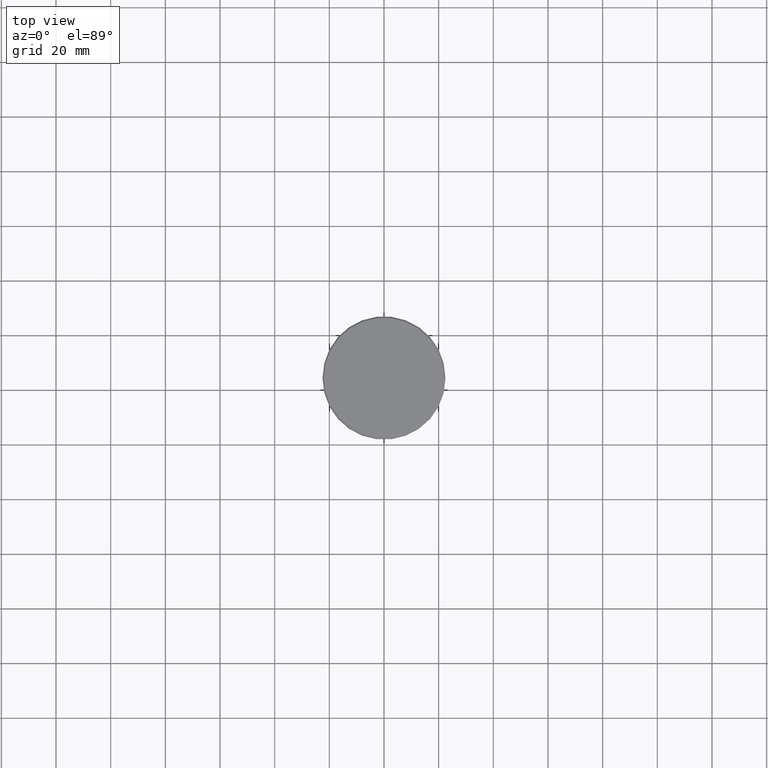
[diagram: clean part render]
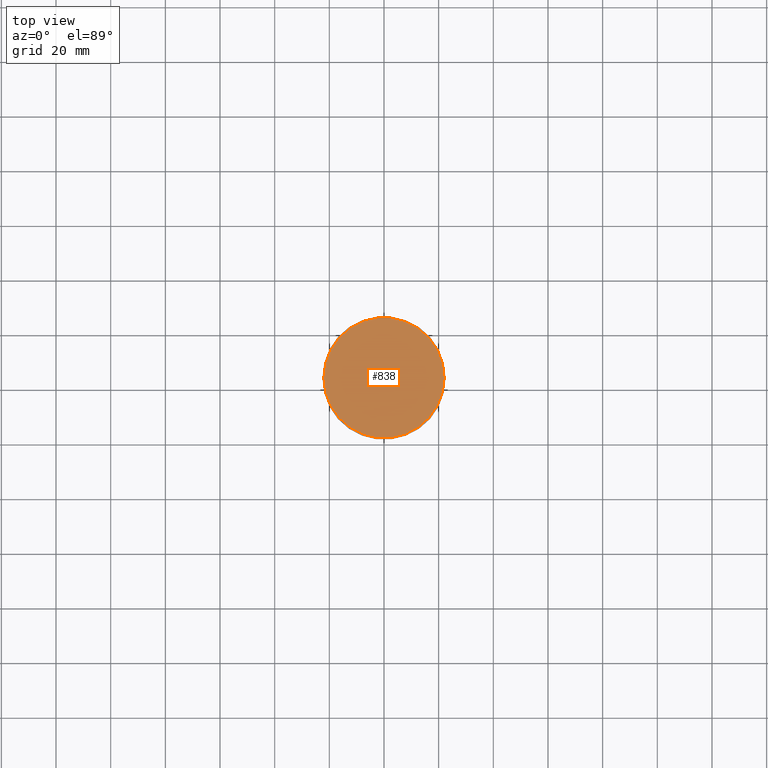
[diagram: same view with one face highlighted and labeled with its STEP entity id]
A machine part, top view. The second image highlights one B-rep face of the part: STEP entity #838.
In plain terms, the highlighted planar face has unit normal (0, -0, 1).
Its self-contained STEP definition (entity closure, byte-faithful):
#67 = CARTESIAN_POINT ( 'NONE',  ( 0.000000000000000000, 0.000000000000000000, 0.000000000000000000 ) ) ;
#118 = VERTEX_POINT ( 'NONE', #754 ) ;
#146 = ORIENTED_EDGE ( 'NONE', *, *, #771, .T. ) ;
#149 = CARTESIAN_POINT ( 'NONE',  ( 0.000000000000000000, 0.000000000000000000, 0.000000000000000000 ) ) ;
#162 = FACE_OUTER_BOUND ( 'NONE', #201, .T. ) ;
#201 = EDGE_LOOP ( 'NONE', ( #146, #1016 ) ) ;
#263 = CIRCLE ( 'NONE', #929, 21.99999999999990763 ) ;
#331 = DIRECTION ( 'NONE',  ( -0.000000000000000000, -0.000000000000000000, 1.000000000000000000 ) ) ;
#347 = DIRECTION ( 'NONE',  ( 1.000000000000000000, 0.000000000000000000, 0.000000000000000000 ) ) ;
#494 = AXIS2_PLACEMENT_3D ( 'NONE', #67, #794, #347 ) ;
#561 = CARTESIAN_POINT ( 'NONE',  ( -21.99999999999990763, 0.000000000000000000, 0.000000000000000000 ) ) ;
#605 = DIRECTION ( 'NONE',  ( -0.000000000000000000, -0.000000000000000000, 1.000000000000000000 ) ) ;
#614 = DIRECTION ( 'NONE',  ( 1.000000000000000000, 0.000000000000000000, 0.000000000000000000 ) ) ;
#667 = VERTEX_POINT ( 'NONE', #561 ) ;
#709 = EDGE_CURVE ( 'NONE', #118, #667, #263, .T. ) ;
#754 = CARTESIAN_POINT ( 'NONE',  ( 21.99999999999990763, 2.724839128102855074E-15, 0.000000000000000000 ) ) ;
#771 = EDGE_CURVE ( 'NONE', #667, #118, #955, .T. ) ;
#794 = DIRECTION ( 'NONE',  ( 0.000000000000000000, -0.000000000000000000, 1.000000000000000000 ) ) ;
#838 = ADVANCED_FACE ( 'NONE', ( #162 ), #1068, .T. ) ;
#908 = AXIS2_PLACEMENT_3D ( 'NONE', #1046, #331, #614 ) ;
#929 = AXIS2_PLACEMENT_3D ( 'NONE', #149, #605, #966 ) ;
#955 = CIRCLE ( 'NONE', #908, 21.99999999999990763 ) ;
#966 = DIRECTION ( 'NONE',  ( 1.000000000000000000, 0.000000000000000000, 0.000000000000000000 ) ) ;
#1016 = ORIENTED_EDGE ( 'NONE', *, *, #709, .T. ) ;
#1046 = CARTESIAN_POINT ( 'NONE',  ( 0.000000000000000000, 0.000000000000000000, 0.000000000000000000 ) ) ;
#1068 = PLANE ( 'NONE',  #494 ) ;